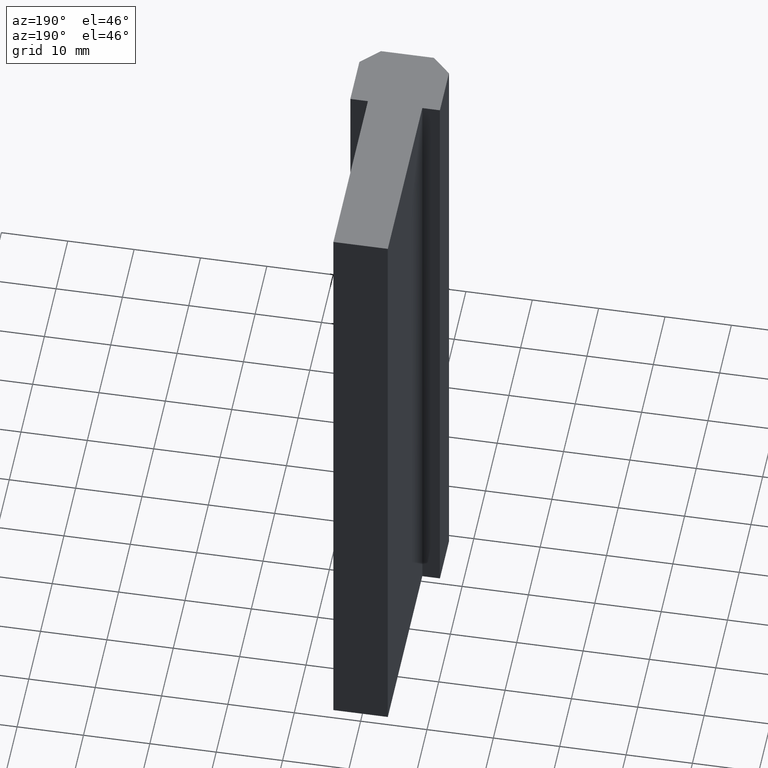
[diagram: clean part render]
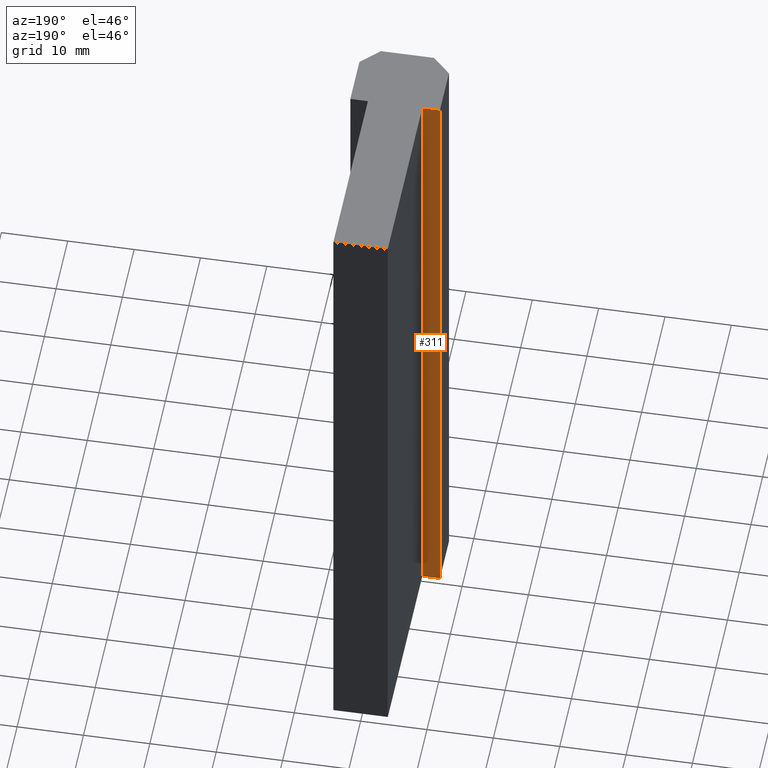
[diagram: same view with one face highlighted and labeled with its STEP entity id]
A machine part, auxiliary view. The second image highlights one B-rep face of the part: STEP entity #311.
In plain terms, the highlighted planar face has unit normal (0, 1, 0).
Its self-contained STEP definition (entity closure, byte-faithful):
#7=CARTESIAN_POINT('',(-6.749999999972943,10.499999999957708,0.0));
#8=VERTEX_POINT('',#7);
#25=CARTESIAN_POINT('',(-6.749999999972943,10.499999999957708,100.0));
#26=VERTEX_POINT('',#25);
#33=CARTESIAN_POINT('',(-6.749999999972943,10.499999999957708,0.0));
#34=DIRECTION('',(0.0,0.0,1.0));
#35=VECTOR('',#34,100.0);
#36=LINE('',#33,#35);
#37=EDGE_CURVE('',#8,#26,#36,.T.);
#264=CARTESIAN_POINT('',(-4.099999999983538,10.499999999957708,0.0));
#265=VERTEX_POINT('',#264);
#272=CARTESIAN_POINT('',(-4.099999999983538,10.499999999957708,100.0));
#273=VERTEX_POINT('',#272);
#274=CARTESIAN_POINT('',(-4.099999999983538,10.499999999957708,0.0));
#275=DIRECTION('',(0.0,0.0,1.0));
#276=VECTOR('',#275,100.0);
#277=LINE('',#274,#276);
#278=EDGE_CURVE('',#265,#273,#277,.T.);
#290=CARTESIAN_POINT('',(-4.099999999983538,10.499999999957708,0.0));
#291=DIRECTION('',(0.0,1.0,0.0));
#292=DIRECTION('',(-1.0,0.0,0.0));
#293=AXIS2_PLACEMENT_3D('',#290,#291,#292);
#294=PLANE('',#293);
#295=CARTESIAN_POINT('',(-4.099999999983544,10.499999999957708,0.0));
#296=DIRECTION('',(-1.0,0.0,0.0));
#297=VECTOR('',#296,2.649999999989399);
#298=LINE('',#295,#297);
#299=EDGE_CURVE('',#265,#8,#298,.T.);
#300=ORIENTED_EDGE('',*,*,#299,.T.);
#301=ORIENTED_EDGE('',*,*,#37,.T.);
#302=CARTESIAN_POINT('',(-4.099999999983544,10.499999999957708,100.0));
#303=DIRECTION('',(-1.0,0.0,0.0));
#304=VECTOR('',#303,2.649999999989399);
#305=LINE('',#302,#304);
#306=EDGE_CURVE('',#273,#26,#305,.T.);
#307=ORIENTED_EDGE('',*,*,#306,.F.);
#308=ORIENTED_EDGE('',*,*,#278,.F.);
#309=EDGE_LOOP('',(#300,#301,#307,#308));
#310=FACE_OUTER_BOUND('',#309,.T.);
#311=ADVANCED_FACE('',(#310),#294,.T.);